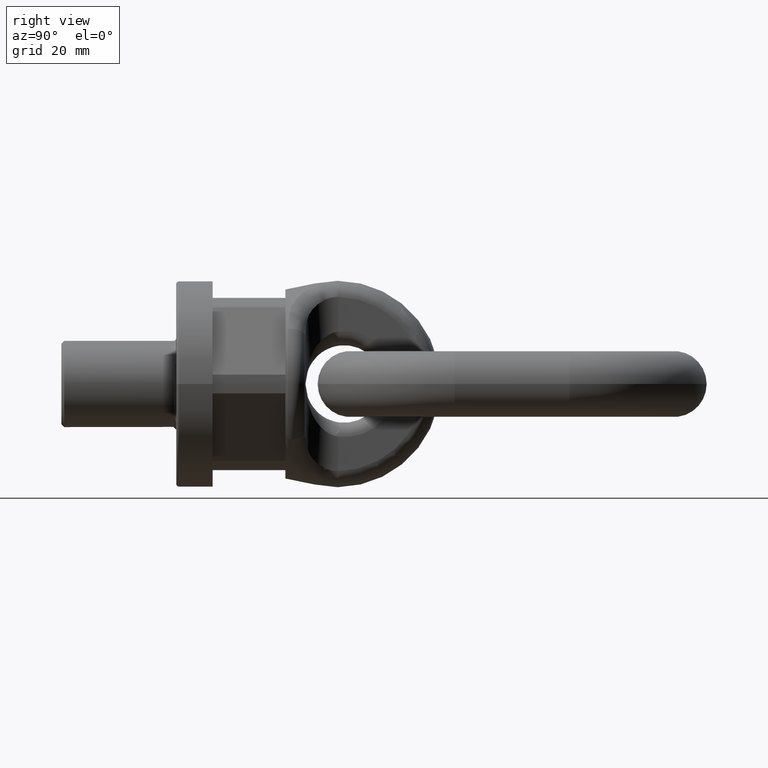
[diagram: clean part render]
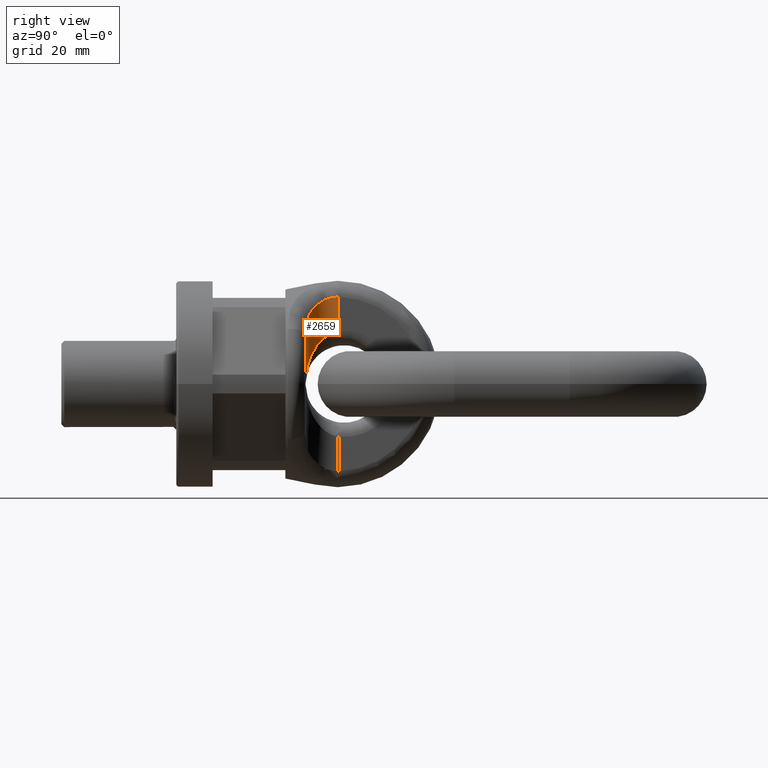
[diagram: same view with one face highlighted and labeled with its STEP entity id]
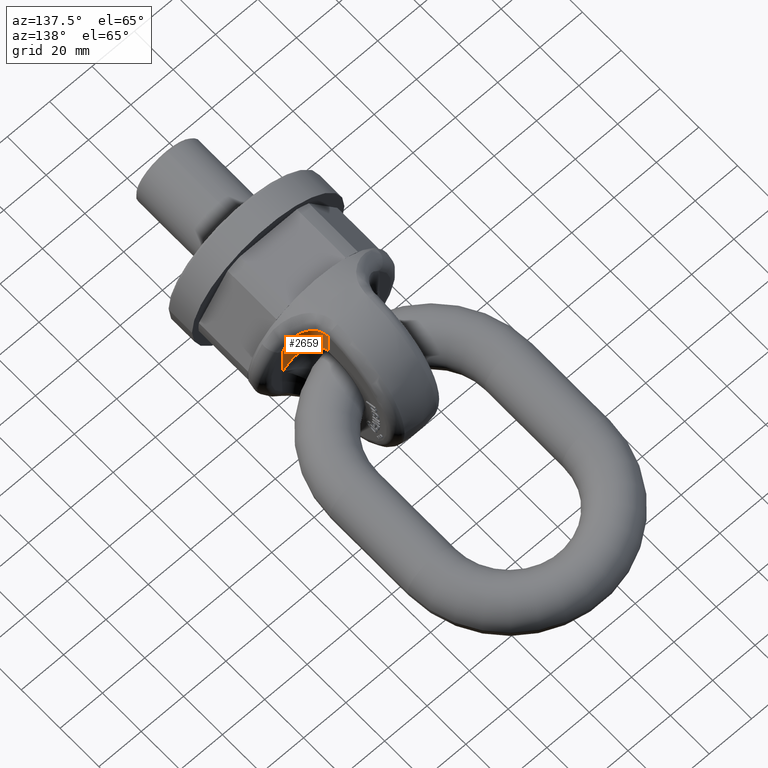
[diagram: same view with one face highlighted and labeled with its STEP entity id]
A machine part, right view. The second image highlights one B-rep face of the part: STEP entity #2659.
A second angle (auxiliary view) of the same face is appended — the face is thin or edge-on in the first view.
In plain terms, the highlighted cylindrical surface (edge-blend (fillet) strip) has radius 11.5 mm, axis along (0, 0, -1).
Its self-contained STEP definition (entity closure, byte-faithful):
#343=B_SPLINE_CURVE_WITH_KNOTS('',3,(#6964,#6965,#6966,#6967,#6968,#6969,
#6970,#6971),.UNSPECIFIED.,.F.,.F.,(4,2,2,4),(0.,0.5,0.75,1.),
 .UNSPECIFIED.);
#344=B_SPLINE_CURVE_WITH_KNOTS('',3,(#6972,#6973,#6974,#6975),
 .UNSPECIFIED.,.F.,.F.,(4,4),(0.,1.),.UNSPECIFIED.);
#345=B_SPLINE_CURVE_WITH_KNOTS('',3,(#6977,#6978,#6979,#6980,#6981,#6982),
 .UNSPECIFIED.,.F.,.F.,(4,2,4),(0.,0.5,1.),.UNSPECIFIED.);
#1812=FACE_OUTER_BOUND('',#3094,.T.);
#2020=CYLINDRICAL_SURFACE('',#5642,11.5);
#2063=LINE('',#6780,#2319);
#2091=LINE('',#6961,#2347);
#2319=VECTOR('',#5919,1.);
#2347=VECTOR('',#5953,1.);
#2659=ADVANCED_FACE('',(#1812),#2020,.F.);
#3094=EDGE_LOOP('',(#3503,#3504,#3505,#3506,#3507));
#3503=ORIENTED_EDGE('',*,*,#5050,.F.);
#3504=ORIENTED_EDGE('',*,*,#5051,.T.);
#3505=ORIENTED_EDGE('',*,*,#5000,.F.);
#3506=ORIENTED_EDGE('',*,*,#5052,.T.);
#3507=ORIENTED_EDGE('',*,*,#5053,.T.);
#4590=VERTEX_POINT('',#6781);
#4591=VERTEX_POINT('',#6782);
#4640=VERTEX_POINT('',#6962);
#4641=VERTEX_POINT('',#6963);
#4642=VERTEX_POINT('',#6976);
#5000=EDGE_CURVE('',#4590,#4591,#2063,.T.);
#5050=EDGE_CURVE('',#4640,#4641,#2091,.T.);
#5051=EDGE_CURVE('',#4640,#4591,#343,.T.);
#5052=EDGE_CURVE('',#4590,#4642,#344,.T.);
#5053=EDGE_CURVE('',#4642,#4641,#345,.T.);
#5642=AXIS2_PLACEMENT_3D('',#6983,#5954,#5955);
#5919=DIRECTION('',(0.,0.,-1.));
#5953=DIRECTION('',(0.,0.,1.));
#5954=DIRECTION('',(0.,0.,-1.));
#5955=DIRECTION('',(-1.,0.,0.));
#6780=CARTESIAN_POINT('',(11.5,56.5,-32.4669536068448));
#6781=CARTESIAN_POINT('',(11.5,56.5,30.3067649213835));
#6782=CARTESIAN_POINT('',(11.5,56.5,18.3915741577495));
#6961=CARTESIAN_POINT('',(23.,45.,32.4669536068448));
#6962=CARTESIAN_POINT('',(23.,45.,0.));
#6963=CARTESIAN_POINT('',(23.,45.,16.3663583016059));
#6964=CARTESIAN_POINT('',(23.,45.,-2.44145602852529E-15));
#6965=CARTESIAN_POINT('',(20.5875549996444,45.,3.66511348676932));
#6966=CARTESIAN_POINT('',(18.1505055652431,45.7060209649007,7.36077816048515));
#6967=CARTESIAN_POINT('',(14.8462021251498,48.2713928799089,12.4927495774917));
#6968=CARTESIAN_POINT('',(13.8116325034164,49.3744623953451,14.1208330035803));
#6969=CARTESIAN_POINT('',(12.1307347710493,52.3698115308923,16.9113574284354));
#6970=CARTESIAN_POINT('',(11.5,54.2920871033146,18.047082163915));
#6971=CARTESIAN_POINT('',(11.5,56.5,18.3915741577495));
#6972=CARTESIAN_POINT('',(11.5,56.5,30.3067649213835));
#6973=CARTESIAN_POINT('',(11.5,54.7139267212544,30.349043054415));
#6974=CARTESIAN_POINT('',(11.932559872913,52.9822713711434,29.9260515688375));
#6975=CARTESIAN_POINT('',(12.6318169353506,51.5249844283744,29.170844144231));
#6976=CARTESIAN_POINT('',(12.6318169353506,51.5249844283744,29.170844144231));
#6977=CARTESIAN_POINT('',(12.6318169353506,51.5249844283744,29.170844144231));
#6978=CARTESIAN_POINT('',(13.8558592455315,48.9740185935709,27.8488612993835));
#6979=CARTESIAN_POINT('',(15.9113250080998,47.1822162585958,26.1578730647848));
#6980=CARTESIAN_POINT('',(19.8426271006275,45.22607418125,21.7367777284566));
#6981=CARTESIAN_POINT('',(21.6187700503174,45.,19.1513754385613));
#6982=CARTESIAN_POINT('',(23.,45.,16.3663583016059));
#6983=CARTESIAN_POINT('',(23.,56.5,39.6));